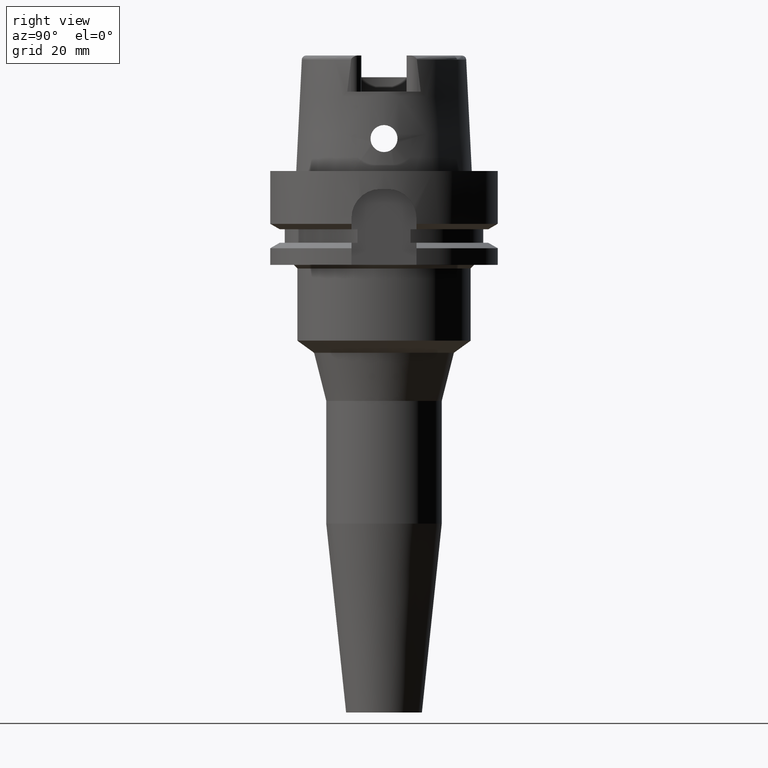
[diagram: clean part render]
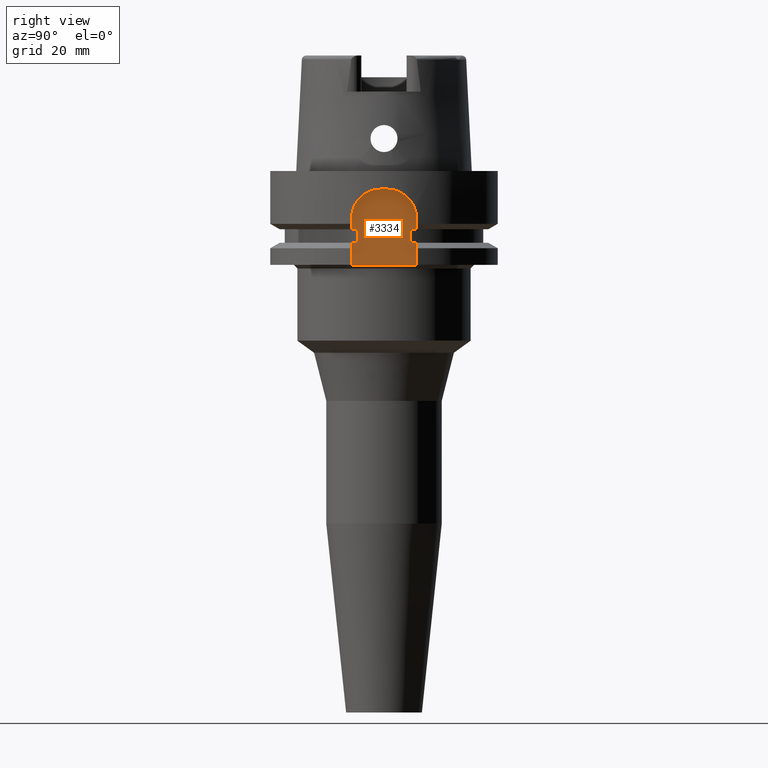
[diagram: same view with one face highlighted and labeled with its STEP entity id]
A machine part, right view. The second image highlights one B-rep face of the part: STEP entity #3334.
In plain terms, the highlighted planar face has unit normal (1, 0, 0).
Its self-contained STEP definition (entity closure, byte-faithful):
#755=DIRECTION('',(2.366280491871E-14,1.E0,0.E0));
#756=VECTOR('',#755,1.651530771650E0);
#757=CARTESIAN_POINT('',(2.65E1,7.348469228350E0,-1.6125E1));
#758=LINE('',#757,#756);
#906=DIRECTION('',(-2.366280491871E-14,1.E0,0.E0));
#907=VECTOR('',#906,1.651530771650E0);
#908=CARTESIAN_POINT('',(2.65E1,-9.E0,-1.6125E1));
#909=LINE('',#908,#907);
#1011=DIRECTION('',(0.E0,1.E0,0.E0));
#1012=VECTOR('',#1011,1.8E1);
#1013=CARTESIAN_POINT('',(2.65E1,-9.E0,-2.6E1));
#1014=LINE('',#1013,#1012);
#1095=DIRECTION('',(0.E0,0.E0,1.E0));
#1096=VECTOR('',#1095,6.125E0);
#1097=CARTESIAN_POINT('',(2.65E1,-9.E0,-2.6E1));
#1098=LINE('',#1097,#1096);
#1102=DIRECTION('',(-2.366280491871E-14,1.E0,0.E0));
#1103=VECTOR('',#1102,1.651530771650E0);
#1104=CARTESIAN_POINT('',(2.65E1,-9.E0,-1.9875E1));
#1105=LINE('',#1104,#1103);
#1109=DIRECTION('',(0.E0,0.E0,1.E0));
#1110=VECTOR('',#1109,3.125E0);
#1111=CARTESIAN_POINT('',(2.65E1,-9.E0,-1.6125E1));
#1112=LINE('',#1111,#1110);
#1116=CARTESIAN_POINT('',(2.65E1,-1.E0,-1.3E1));
#1117=DIRECTION('',(-1.E0,0.E0,0.E0));
#1118=DIRECTION('',(0.E0,-1.E0,0.E0));
#1119=AXIS2_PLACEMENT_3D('',#1116,#1117,#1118);
#1124=DIRECTION('',(0.E0,1.E0,0.E0));
#1125=VECTOR('',#1124,2.000000000001E0);
#1126=CARTESIAN_POINT('',(2.65E1,-1.E0,-5.E0));
#1127=LINE('',#1126,#1125);
#1131=CARTESIAN_POINT('',(2.65E1,1.E0,-1.3E1));
#1132=DIRECTION('',(-1.E0,0.E0,0.E0));
#1133=DIRECTION('',(0.E0,1.250666237240E-13,1.E0));
#1134=AXIS2_PLACEMENT_3D('',#1131,#1132,#1133);
#1139=DIRECTION('',(0.E0,0.E0,-1.E0));
#1140=VECTOR('',#1139,3.125E0);
#1141=CARTESIAN_POINT('',(2.65E1,9.E0,-1.3E1));
#1142=LINE('',#1141,#1140);
#1146=DIRECTION('',(2.366280491871E-14,1.E0,0.E0));
#1147=VECTOR('',#1146,1.651530771650E0);
#1148=CARTESIAN_POINT('',(2.65E1,7.348469228350E0,-1.9875E1));
#1149=LINE('',#1148,#1147);
#1153=DIRECTION('',(0.E0,0.E0,-1.E0));
#1154=VECTOR('',#1153,6.125E0);
#1155=CARTESIAN_POINT('',(2.65E1,9.E0,-1.9875E1));
#1156=LINE('',#1155,#1154);
#1261=DIRECTION('',(0.E0,0.E0,-1.E0));
#1262=VECTOR('',#1261,3.75E0);
#1263=CARTESIAN_POINT('',(2.65E1,-7.348469228350E0,-1.6125E1));
#1264=LINE('',#1263,#1262);
#1445=DIRECTION('',(0.E0,0.E0,1.E0));
#1446=VECTOR('',#1445,3.75E0);
#1447=CARTESIAN_POINT('',(2.65E1,7.348469228350E0,-1.9875E1));
#1448=LINE('',#1447,#1446);
#2482=CARTESIAN_POINT('',(2.65E1,-9.E0,-2.6E1));
#2483=VERTEX_POINT('',#2482);
#2484=CARTESIAN_POINT('',(2.65E1,9.E0,-2.6E1));
#2485=VERTEX_POINT('',#2484);
#2563=CARTESIAN_POINT('',(2.65E1,-7.348469228350E0,-1.9875E1));
#2565=VERTEX_POINT('',#2563);
#2566=CARTESIAN_POINT('',(2.65E1,-9.E0,-1.9875E1));
#2567=VERTEX_POINT('',#2566);
#2568=CARTESIAN_POINT('',(2.65E1,9.E0,-1.9875E1));
#2569=VERTEX_POINT('',#2568);
#2570=CARTESIAN_POINT('',(2.65E1,7.348469228350E0,-1.9875E1));
#2571=VERTEX_POINT('',#2570);
#2574=CARTESIAN_POINT('',(2.65E1,7.348469228350E0,-1.6125E1));
#2575=VERTEX_POINT('',#2574);
#2580=CARTESIAN_POINT('',(2.65E1,-7.348469228350E0,-1.6125E1));
#2581=VERTEX_POINT('',#2580);
#2582=CARTESIAN_POINT('',(2.65E1,-9.E0,-1.6125E1));
#2583=VERTEX_POINT('',#2582);
#2584=CARTESIAN_POINT('',(2.65E1,-9.E0,-1.3E1));
#2585=VERTEX_POINT('',#2584);
#2586=CARTESIAN_POINT('',(2.65E1,-1.000000000001E0,-5.E0));
#2587=VERTEX_POINT('',#2586);
#2588=CARTESIAN_POINT('',(2.65E1,1.E0,-5.E0));
#2589=VERTEX_POINT('',#2588);
#2590=CARTESIAN_POINT('',(2.65E1,9.E0,-1.3E1));
#2591=VERTEX_POINT('',#2590);
#2592=CARTESIAN_POINT('',(2.65E1,9.E0,-1.6125E1));
#2593=VERTEX_POINT('',#2592);
#3303=CARTESIAN_POINT('',(2.65E1,0.E0,0.E0));
#3304=DIRECTION('',(1.E0,0.E0,0.E0));
#3305=DIRECTION('',(0.E0,0.E0,1.E0));
#3306=AXIS2_PLACEMENT_3D('',#3303,#3304,#3305);
#3307=PLANE('',#3306);
#3308=ORIENTED_EDGE('',*,*,#3236,.F.);
#3310=ORIENTED_EDGE('',*,*,#3309,.T.);
#3312=ORIENTED_EDGE('',*,*,#3311,.T.);
#3314=ORIENTED_EDGE('',*,*,#3313,.F.);
#3315=ORIENTED_EDGE('',*,*,#3177,.F.);
#3317=ORIENTED_EDGE('',*,*,#3316,.T.);
#3319=ORIENTED_EDGE('',*,*,#3318,.T.);
#3321=ORIENTED_EDGE('',*,*,#3320,.T.);
#3323=ORIENTED_EDGE('',*,*,#3322,.T.);
#3325=ORIENTED_EDGE('',*,*,#3324,.T.);
#3326=ORIENTED_EDGE('',*,*,#3066,.F.);
#3328=ORIENTED_EDGE('',*,*,#3327,.F.);
#3330=ORIENTED_EDGE('',*,*,#3329,.T.);
#3331=ORIENTED_EDGE('',*,*,#3293,.T.);
#3332=EDGE_LOOP('',(#3308,#3310,#3312,#3314,#3315,#3317,#3319,#3321,#3323,#3325,
#3326,#3328,#3330,#3331));
#3333=FACE_OUTER_BOUND('',#3332,.F.);
#1120=CIRCLE('',#1119,8.E0);
#1135=CIRCLE('',#1134,8.E0);
#3066=EDGE_CURVE('',#2575,#2593,#758,.T.);
#3177=EDGE_CURVE('',#2583,#2581,#909,.T.);
#3236=EDGE_CURVE('',#2483,#2485,#1014,.T.);
#3293=EDGE_CURVE('',#2569,#2485,#1156,.T.);
#3309=EDGE_CURVE('',#2483,#2567,#1098,.T.);
#3311=EDGE_CURVE('',#2567,#2565,#1105,.T.);
#3313=EDGE_CURVE('',#2581,#2565,#1264,.T.);
#3316=EDGE_CURVE('',#2583,#2585,#1112,.T.);
#3318=EDGE_CURVE('',#2585,#2587,#1120,.T.);
#3320=EDGE_CURVE('',#2587,#2589,#1127,.T.);
#3322=EDGE_CURVE('',#2589,#2591,#1135,.T.);
#3324=EDGE_CURVE('',#2591,#2593,#1142,.T.);
#3327=EDGE_CURVE('',#2571,#2575,#1448,.T.);
#3329=EDGE_CURVE('',#2571,#2569,#1149,.T.);
#3334=ADVANCED_FACE('',(#3333),#3307,.T.);